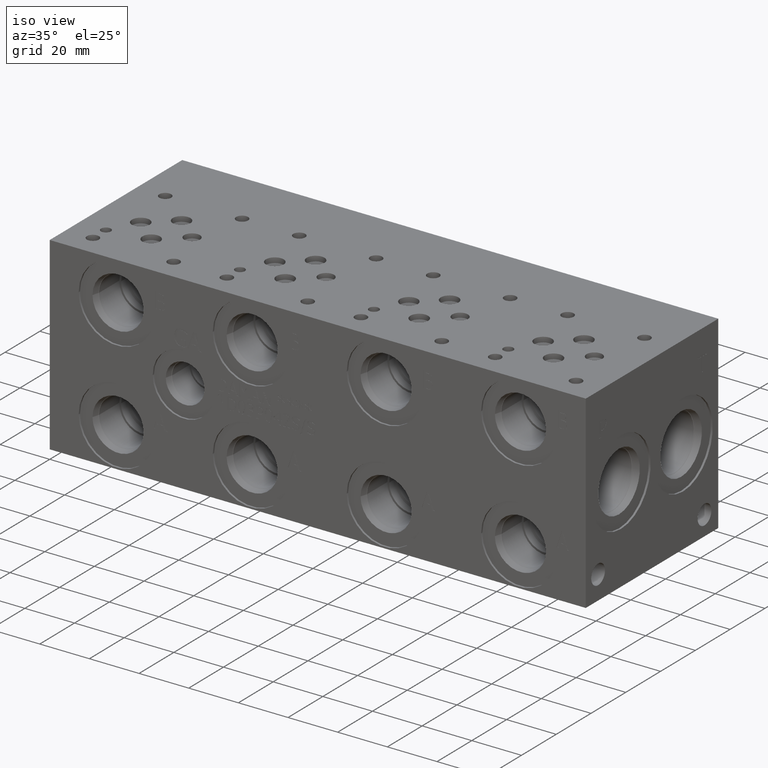
[diagram: clean part render]
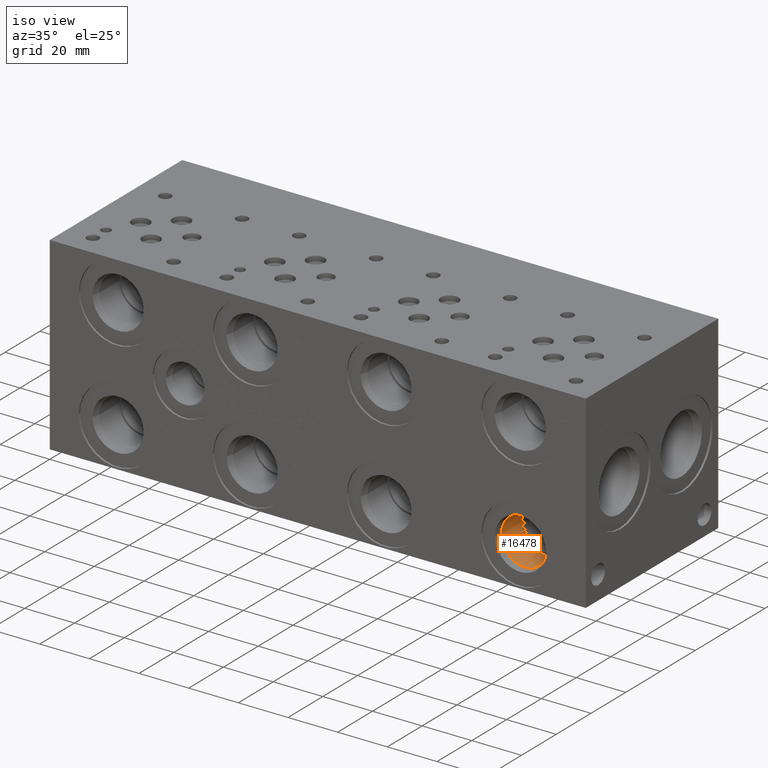
[diagram: same view with one face highlighted and labeled with its STEP entity id]
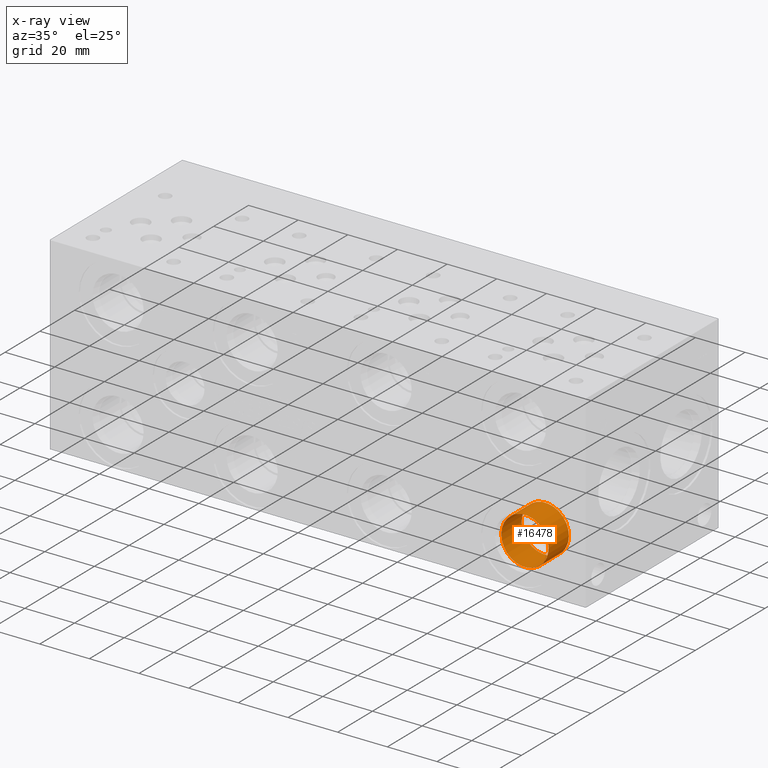
[diagram: x-ray of the same camera — body ghosted, the highlighted face saturated]
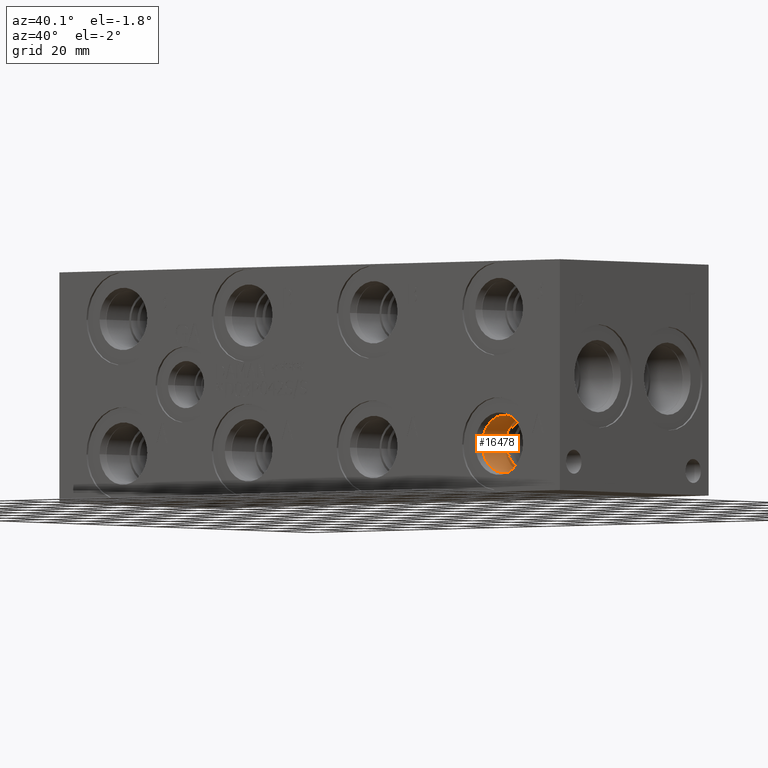
[diagram: same view with one face highlighted and labeled with its STEP entity id]
A machine part, iso view. The second image highlights one B-rep face of the part: STEP entity #16478.
The next image is the same camera in x-ray: the body ghosted, the highlighted face saturated — about 0% of this face is hidden behind the body in this view.
A second angle (auxiliary view) of the same face is appended — the face is thin or edge-on in the first view.
In plain terms, the highlighted cylindrical surface (bore or boss wall) has radius 9.525 mm, axis along (0, -1, 0).
Its self-contained STEP definition (entity closure, byte-faithful):
#179=CYLINDRICAL_SURFACE('',#17437,9.525);
#398=CIRCLE('',#17241,9.525);
#515=CIRCLE('',#17434,9.525);
#516=CIRCLE('',#17435,9.525);
#2218=FACE_OUTER_BOUND('',#3185,.T.);
#3185=EDGE_LOOP('',(#14060,#14061,#14062,#14063,#14064));
#4685=LINE('',#28153,#6106);
#6106=VECTOR('',#20736,9.525);
#7436=VERTEX_POINT('',#27765);
#7561=VERTEX_POINT('',#28146);
#7562=VERTEX_POINT('',#28147);
#9622=EDGE_CURVE('',#7436,#7436,#398,.T.);
#9801=EDGE_CURVE('',#7561,#7562,#515,.T.);
#9802=EDGE_CURVE('',#7562,#7561,#516,.T.);
#9804=EDGE_CURVE('',#7436,#7562,#4685,.T.);
#14060=ORIENTED_EDGE('',*,*,#9622,.T.);
#14061=ORIENTED_EDGE('',*,*,#9804,.T.);
#14062=ORIENTED_EDGE('',*,*,#9801,.F.);
#14063=ORIENTED_EDGE('',*,*,#9802,.F.);
#14064=ORIENTED_EDGE('',*,*,#9804,.F.);
#16478=ADVANCED_FACE('',(#2218),#179,.F.);
#17241=AXIS2_PLACEMENT_3D('',#27767,#20280,#20281);
#17434=AXIS2_PLACEMENT_3D('',#28148,#20728,#20729);
#17435=AXIS2_PLACEMENT_3D('',#28149,#20730,#20731);
#17437=AXIS2_PLACEMENT_3D('',#28152,#20734,#20735);
#20280=DIRECTION('center_axis',(0.,-1.,0.));
#20281=DIRECTION('ref_axis',(1.,0.,0.));
#20728=DIRECTION('center_axis',(0.,-1.,0.));
#20729=DIRECTION('ref_axis',(1.,0.,0.));
#20730=DIRECTION('center_axis',(0.,-1.,0.));
#20731=DIRECTION('ref_axis',(1.,0.,0.));
#20734=DIRECTION('center_axis',(0.,-1.,0.));
#20735=DIRECTION('ref_axis',(1.,0.,0.));
#20736=DIRECTION('',(0.,1.,0.));
#27765=CARTESIAN_POINT('',(179.5018,3.4036,15.875));
#27767=CARTESIAN_POINT('Origin',(189.0268,3.4036,15.875));
#28146=CARTESIAN_POINT('',(198.5518,15.0622,15.875));
#28147=CARTESIAN_POINT('',(179.5018,15.0622,15.875));
#28148=CARTESIAN_POINT('Origin',(189.0268,15.0622,15.875));
#28149=CARTESIAN_POINT('Origin',(189.0268,15.0622,15.875));
#28152=CARTESIAN_POINT('Origin',(189.0268,7.5311,15.875));
#28153=CARTESIAN_POINT('',(179.5018,7.5311,15.875));